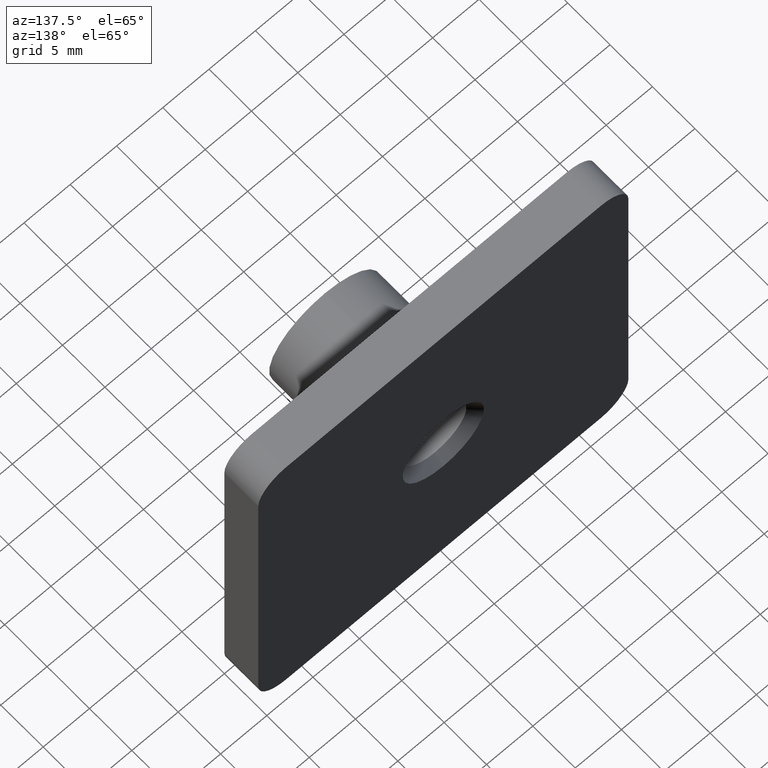
[diagram: clean part render]
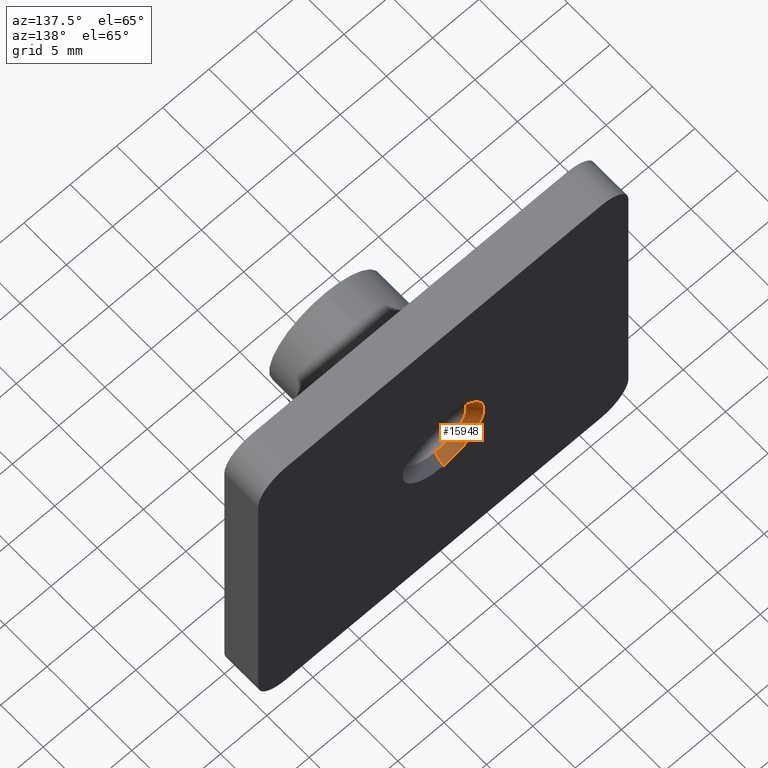
[diagram: same view with one face highlighted and labeled with its STEP entity id]
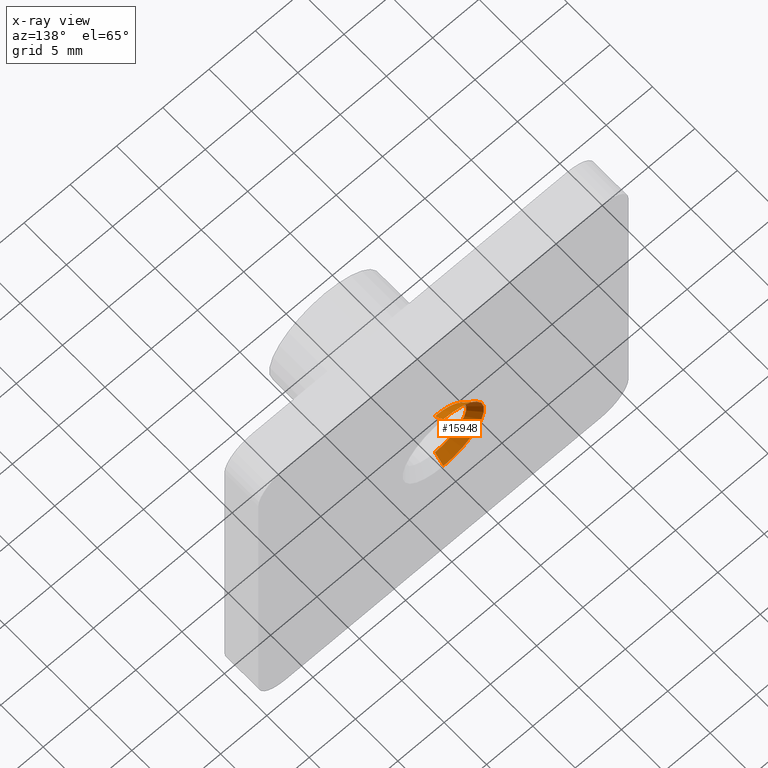
[diagram: x-ray of the same camera — body ghosted, the highlighted face saturated]
A machine part, auxiliary view. The second image highlights one B-rep face of the part: STEP entity #15948.
The next image is the same camera in x-ray: the body ghosted, the highlighted face saturated — about 0% of this face is hidden behind the body in this view.
In plain terms, the highlighted conical surface has half-angle 45 deg.
Its self-contained STEP definition (entity closure, byte-faithful):
#960 = AXIS2_PLACEMENT_3D ( 'NONE', #1412, #13055, #1535 ) ;
#1196 = VECTOR ( 'NONE', #3099, 1000.000000000000100 ) ;
#1377 = CARTESIAN_POINT ( 'NONE',  ( 5.388445916248347100E-016, 4.000000000000000000, -4.399999999999994100 ) ) ;
#1412 = CARTESIAN_POINT ( 'NONE',  ( 0.0000000000000000000, 2.999999999999988900, 0.0000000000000000000 ) ) ;
#1535 = DIRECTION ( 'NONE',  ( 0.0000000000000000000, 0.0000000000000000000, 1.000000000000000000 ) ) ;
#1602 = VERTEX_POINT ( 'NONE', #6982 ) ;
#1822 = DIRECTION ( 'NONE',  ( 0.0000000000000000000, 0.7071067811865506800, 0.7071067811865443500 ) ) ;
#3099 = DIRECTION ( 'NONE',  ( 8.659560562354897100E-017, 0.7071067811865506800, -0.7071067811865443500 ) ) ;
#3175 = AXIS2_PLACEMENT_3D ( 'NONE', #12837, #4121, #10020 ) ;
#3401 = CARTESIAN_POINT ( 'NONE',  ( 0.0000000000000000000, 2.999999999999988900, -3.399999999999991500 ) ) ;
#3471 = DIRECTION ( 'NONE',  ( -0.0000000000000000000, 1.000000000000000000, -0.0000000000000000000 ) ) ;
#3563 = CIRCLE ( 'NONE', #960, 3.399999999999991500 ) ;
#4121 = DIRECTION ( 'NONE',  ( -0.0000000000000000000, -1.000000000000000000, -0.0000000000000000000 ) ) ;
#4970 = DIRECTION ( 'NONE',  ( 0.0000000000000000000, 0.0000000000000000000, 1.000000000000000000 ) ) ;
#5089 = LINE ( 'NONE', #1377, #1196 ) ;
#5708 = VECTOR ( 'NONE', #1822, 1000.000000000000100 ) ;
#6023 = FACE_OUTER_BOUND ( 'NONE', #16092, .T. ) ;
#6275 = EDGE_CURVE ( 'NONE', #8929, #1602, #11572, .T. ) ;
#6477 = CARTESIAN_POINT ( 'NONE',  ( 0.0000000000000000000, 4.000000000000000000, 4.399999999999994100 ) ) ;
#6982 = CARTESIAN_POINT ( 'NONE',  ( 0.0000000000000000000, 4.000000000000000000, 4.399999999999994100 ) ) ;
#7083 = AXIS2_PLACEMENT_3D ( 'NONE', #9250, #3471, #4970 ) ;
#7328 = EDGE_CURVE ( 'NONE', #9023, #16587, #5089, .T. ) ;
#7873 = CARTESIAN_POINT ( 'NONE',  ( 5.388445916248347100E-016, 4.000000000000000000, -4.399999999999994100 ) ) ;
#8824 = EDGE_CURVE ( 'NONE', #9023, #8929, #3563, .T. ) ;
#8929 = VERTEX_POINT ( 'NONE', #15559 ) ;
#9023 = VERTEX_POINT ( 'NONE', #3401 ) ;
#9250 = CARTESIAN_POINT ( 'NONE',  ( 0.0000000000000000000, 4.000000000000000000, 0.0000000000000000000 ) ) ;
#10020 = DIRECTION ( 'NONE',  ( 0.0000000000000000000, 0.0000000000000000000, 1.000000000000000000 ) ) ;
#10550 = CIRCLE ( 'NONE', #3175, 4.399999999999994100 ) ;
#10575 = ORIENTED_EDGE ( 'NONE', *, *, #15814, .F. ) ;
#10877 = ORIENTED_EDGE ( 'NONE', *, *, #7328, .T. ) ;
#11572 = LINE ( 'NONE', #6477, #5708 ) ;
#11864 = CONICAL_SURFACE ( 'NONE', #7083, 4.399999999999994100, 0.7853981633974439500 ) ;
#12837 = CARTESIAN_POINT ( 'NONE',  ( 0.0000000000000000000, 4.000000000000000000, 0.0000000000000000000 ) ) ;
#13055 = DIRECTION ( 'NONE',  ( -0.0000000000000000000, 1.000000000000000000, -0.0000000000000000000 ) ) ;
#13402 = ORIENTED_EDGE ( 'NONE', *, *, #6275, .F. ) ;
#15559 = CARTESIAN_POINT ( 'NONE',  ( 4.163799117100990700E-016, 2.999999999999988900, 3.399999999999991500 ) ) ;
#15814 = EDGE_CURVE ( 'NONE', #1602, #16587, #10550, .T. ) ;
#15948 = ADVANCED_FACE ( 'NONE', ( #6023 ), #11864, .F. ) ;
#16092 = EDGE_LOOP ( 'NONE', ( #18532, #10877, #10575, #13402 ) ) ;
#16587 = VERTEX_POINT ( 'NONE', #7873 ) ;
#18532 = ORIENTED_EDGE ( 'NONE', *, *, #8824, .F. ) ;